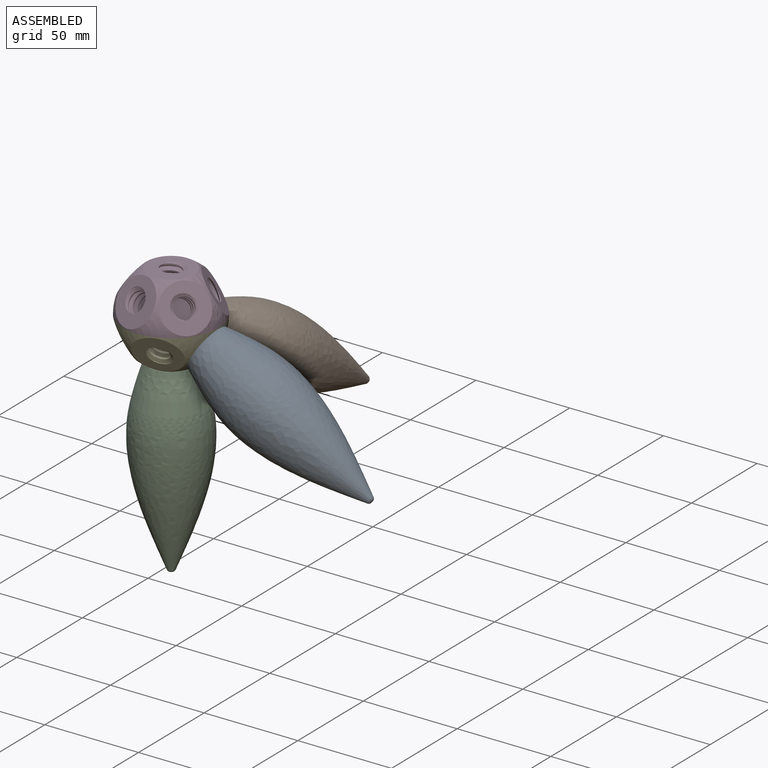
[diagram: assembled view]
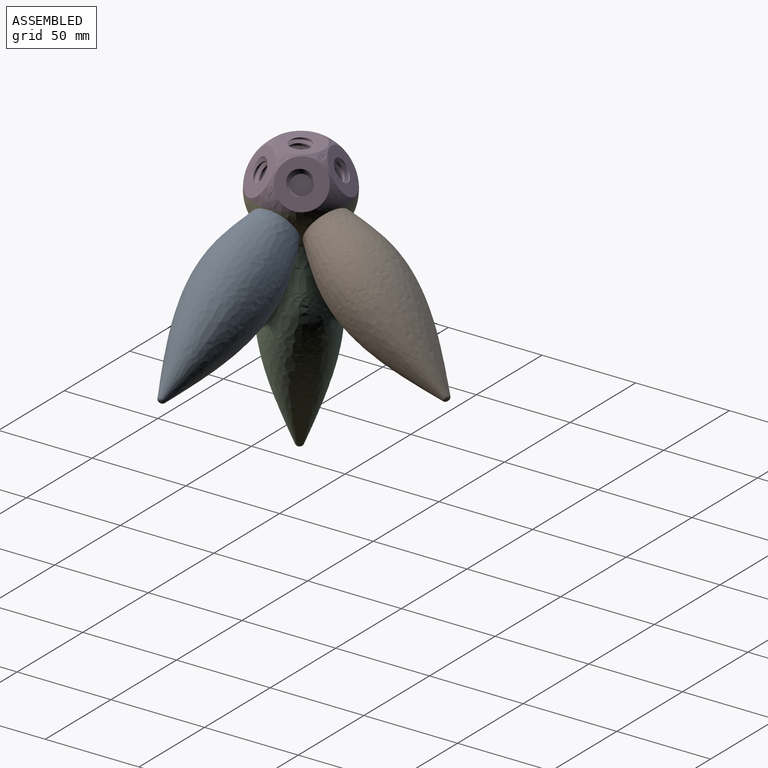
[diagram: assembled view, second angle]
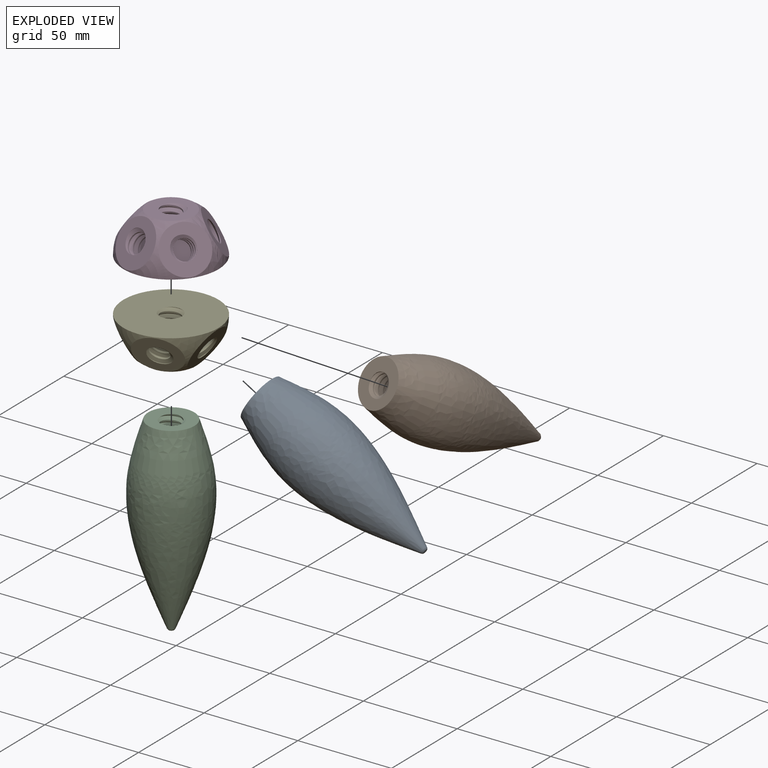
[diagram: exploded view]
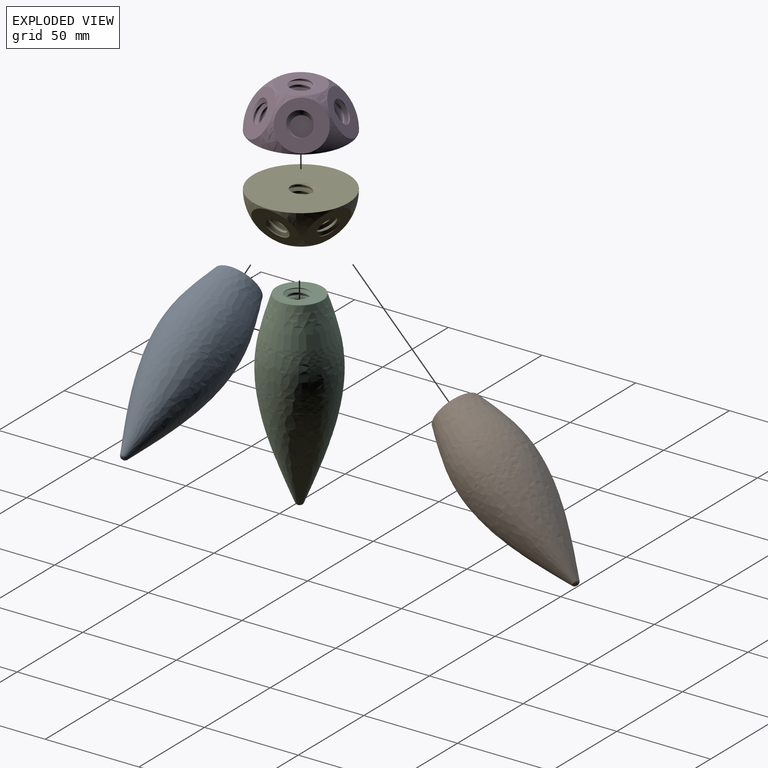
[diagram: exploded view, second angle]
ASSEMBLY  parts=5 mates=4
PART A: 11 faces, bbox 53.1x53.1x103.7 mm
  f0: plane 25.48x25.48mm, normal (0,0,-1), area 356mm2, adj f2,f6,f7,f8,f10
  f1: plane 1.48x1.48mm, normal (0,0,1), area 1.7mm2, adj f3
  f2: bspline ~101.6x52.26mm, area 9436.3mm2, adj f0,f3
  f3: bspline ~3.83x3.83mm, area 13.2mm2, adj f1,f2
  f4: cone r=6.95mm half-angle=28.7deg, axis (0,0,-1), area 315.8mm2, adj f5,f9
  f5: plane 5.24x5.15mm, normal (0,0,-1), area 1.2mm2, adj f4,f6,f7,f8
  f6: bspline ~16.34x14.75mm, area 311.1mm2, adj f0,f5,f8,f9,f10
  f7: bspline ~16.34x15.28mm, area 310.8mm2, adj f0,f5,f8,f9,f10
  f8: bspline ~16.68x14.44mm, area 82.6mm2, adj f0,f5,f6,f7
  f9: plane 14.64x14.64mm, normal (0,0,1), area 33.8mm2, adj f4,f6,f7,f10
  f10: cylinder r=5.36mm len=12.7mm, axis (0,0,1), area 107.8mm2, adj f0,f6,f7,f9
PART B: same geometry as A
PART C: same geometry as A
PART D: 37 faces, bbox 50.9x50.9x27.1 mm
  f0: plane 50.92x50.92mm, normal (0,0,-1), area 1907.8mm2, adj f12,f33,f34,f35,f36
  f1: plane 24.72x24.72mm, normal (0,0,1), area 356.1mm2, adj f12,f33,f34,f35,f36
  f2: plane 11.91x10.7mm, normal (-0.27,-0.82,0.5), area 119mm2, adj f29,f30,f31,f32
  f3: plane 23.82x21.42mm, normal (-0.27,-0.82,0.5), area 356.1mm2, adj f12,f29,f30,f31,f32
  f4: plane 12.35x10.7mm, normal (-0.87,0,0.5), area 119mm2, adj f25,f26,f27,f28
  f5: plane 24.72x21.42mm, normal (-0.87,0,0.5), area 356.1mm2, adj f12,f25,f26,f27,f28
  f6: plane 11.97x10.7mm, normal (-0.27,0.82,0.5), area 119mm2, adj f21,f22,f23,f24
  f7: plane 23.82x21.42mm, normal (-0.27,0.82,0.5), area 356.1mm2, adj f12,f21,f22,f23,f24
  f8: plane 10.83x10.7mm, normal (0.7,0.51,0.5), area 119mm2, adj f17,f18,f19,f20
  f9: plane 21.42x21.29mm, normal (0.7,0.51,0.5), area 356.1mm2, adj f12,f17,f18,f19,f20
  f10: plane 10.7x10.64mm, normal (0.7,-0.51,0.5), area 119mm2, adj f13,f14,f15,f16
  f11: plane 21.42x21.29mm, normal (0.7,-0.51,0.5), area 356.1mm2, adj f12,f13,f14,f15,f16
  f12: sphere r=25.4mm, area 1012.3mm2, adj f0,f1,f3,f5,f7,f9,f11
  f13: bspline ~17.26x16.49mm, area 233.2mm2, adj f10,f11,f15,f16
  f14: bspline ~17.26x16.49mm, area 233.1mm2, adj f10,f11,f15,f16
  f15: bspline ~17.62x16.83mm, area 61.9mm2, adj f10,f11,f13,f14
  f16: cylinder r=5.36mm len=14.32mm, axis (0.7,-0.51,0.5), area 80.4mm2, adj f10,f11,f13,f14
  f17: bspline ~17.26x16.49mm, area 233.2mm2, adj f8,f9,f19,f20
  f18: bspline ~17.26x16.49mm, area 233.1mm2, adj f8,f9,f19,f20
  f19: bspline ~17.62x16.83mm, area 61.9mm2, adj f8,f9,f17,f18
  f20: cylinder r=5.36mm len=14.32mm, axis (0.7,0.51,0.5), area 80.4mm2, adj f8,f9,f17,f18
  f21: bspline ~17.67x16.49mm, area 233.2mm2, adj f6,f7,f23,f24
  f22: bspline ~17.67x16.49mm, area 233.1mm2, adj f6,f7,f23,f24
  f23: bspline ~18.03x16.83mm, area 61.9mm2, adj f6,f7,f21,f22
  f24: cylinder r=5.36mm len=14.04mm, axis (-0.27,0.82,0.5), area 80.4mm2, adj f6,f7,f21,f22
  f25: bspline ~16.49x16.34mm, area 233.2mm2, adj f4,f5,f27,f28
  f26: bspline ~16.49x16.34mm, area 233.1mm2, adj f4,f5,f27,f28
  f27: bspline ~16.83x16.68mm, area 61.9mm2, adj f4,f5,f25,f26
  f28: cylinder r=5.36mm len=14.04mm, axis (-0.87,0,0.5), area 80.4mm2, adj f4,f5,f25,f26
  f29: bspline ~17.67x17.14mm, area 233.2mm2, adj f2,f3,f31,f32
  f30: bspline ~17.67x16.49mm, area 233.1mm2, adj f2,f3,f31,f32
  f31: bspline ~18.03x16.83mm, area 61.9mm2, adj f2,f3,f29,f30
  f32: cylinder r=5.36mm len=14.04mm, axis (-0.27,-0.82,0.5), area 80.4mm2, adj f2,f3,f29,f30
  f33: bspline ~24.28x16.34mm, area 543.4mm2, adj f0,f1,f35,f36
  f34: bspline ~24.8x16.34mm, area 544.6mm2, adj f0,f1,f35,f36
  f35: bspline ~23.68x16.68mm, area 144.5mm2, adj f0,f1,f33,f34
  f36: cylinder r=5.36mm len=22.23mm, axis (0,0,1), area 210.1mm2, adj f0,f1,f33,f34
PART E: same geometry as D
PLACE A rot(axis=(-0.87,0,-0.5),180deg) t=(12.09,6.4,-6.43)mm
PLACE B rot(axis=(-0.99,0.08,-0.13),121.9deg) t=(-0.75,24.58,-6.39)mm
PLACE C rot(axis=(1,0,0),180deg) t=(-6.72,5.96,-17.54)mm
PLACE D t=(-7.16,6.4,4.69)mm fixed
PLACE E rot(axis=(0,1,0),180deg) t=(-7.16,6.4,4.69)mm
MATE fastened A.f4 <-> E.f28  axis (-0.87,0,0.5) through (12.09,6.4,-6.43)mm
MATE fastened C.f0 <-> E.f1  axis (0,0,1) through (-6.94,6.18,-17.54)mm
MATE fastened B.f0 <-> E.f7  axis (-0.27,-0.82,0.5) through (-0.97,24.74,-6.23)mm
MATE fastened E.f36 <-> D.f36  axis (0,0,-1) through (-7.16,6.4,4.69)mm
